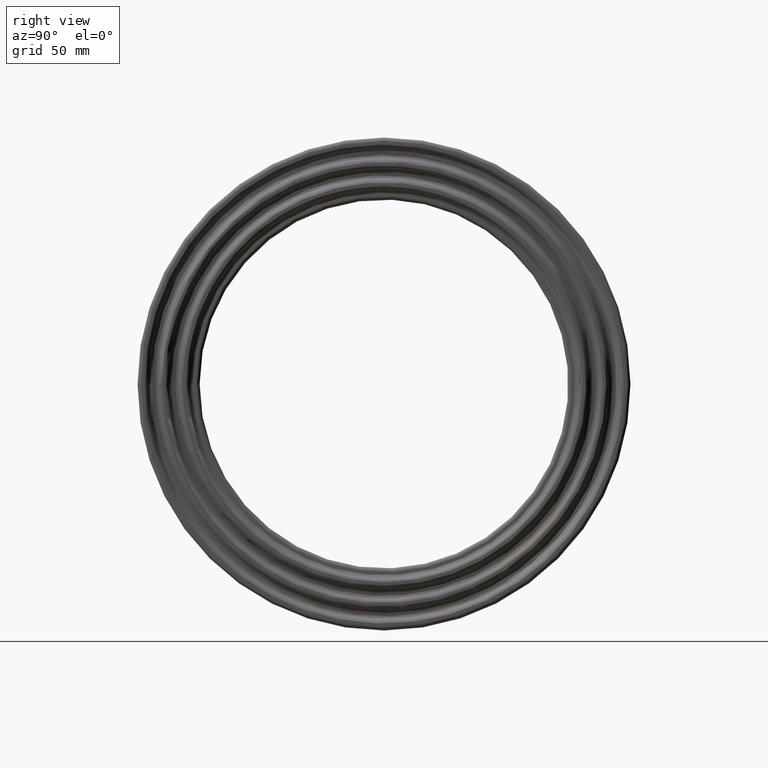
[diagram: clean part render]
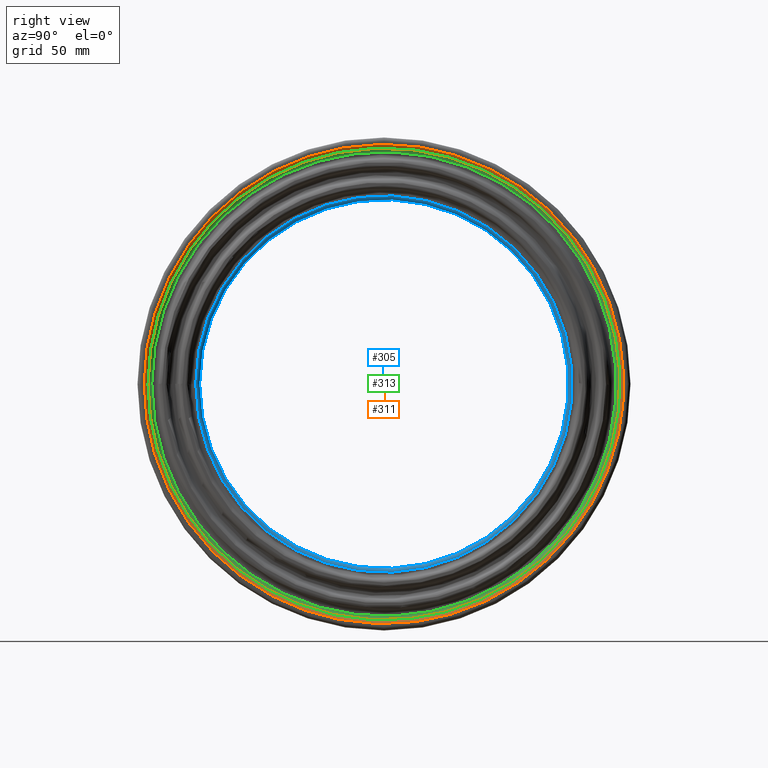
[diagram: same view with three faces highlighted in distinct colors, each labeled with its STEP entity id]
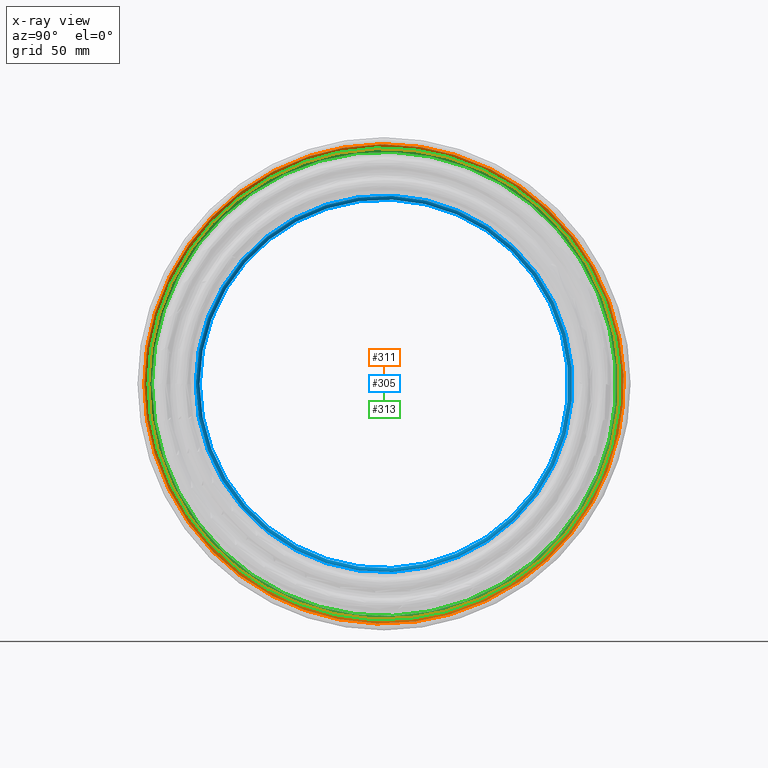
[diagram: x-ray of the same camera — body ghosted, the three highlighted faces saturated]
A machine part, right view with three faces highlighted in distinct colors.
The next image is the same camera in x-ray (body ghosted, the three faces saturated) — at least one of them is partly hidden behind the body in this view.
Their STEP definitions:

[orange] entity #311 — the highlighted face is a freeform B-spline surface patch.
#16=B_SPLINE_SURFACE_WITH_KNOTS('',3,3,((#897,#898,#899,#900,#901,#902,
#903,#904,#905,#906,#907,#908,#909,#910,#911,#912,#913,#914,#915,#916,#917,
#918,#919,#920,#921,#922,#923,#924,#925,#926,#927,#928,#929,#930,#931,#932,
#933,#934,#935,#936,#937,#938,#939,#940,#941,#942,#943,#944,#945,#946,#947),
(#948,#949,#950,#951,#952,#953,#954,#955,#956,#957,#958,#959,#960,#961,
#962,#963,#964,#965,#966,#967,#968,#969,#970,#971,#972,#973,#974,#975,#976,
#977,#978,#979,#980,#981,#982,#983,#984,#985,#986,#987,#988,#989,#990,#991,
#992,#993,#994,#995,#996,#997,#998),(#999,#1000,#1001,#1002,#1003,#1004,
#1005,#1006,#1007,#1008,#1009,#1010,#1011,#1012,#1013,#1014,#1015,#1016,
#1017,#1018,#1019,#1020,#1021,#1022,#1023,#1024,#1025,#1026,#1027,#1028,
#1029,#1030,#1031,#1032,#1033,#1034,#1035,#1036,#1037,#1038,#1039,#1040,
#1041,#1042,#1043,#1044,#1045,#1046,#1047,#1048,#1049),(#1050,#1051,#1052,
#1053,#1054,#1055,#1056,#1057,#1058,#1059,#1060,#1061,#1062,#1063,#1064,
#1065,#1066,#1067,#1068,#1069,#1070,#1071,#1072,#1073,#1074,#1075,#1076,
#1077,#1078,#1079,#1080,#1081,#1082,#1083,#1084,#1085,#1086,#1087,#1088,
#1089,#1090,#1091,#1092,#1093,#1094,#1095,#1096,#1097,#1098,#1099,#1100),
(#1101,#1102,#1103,#1104,#1105,#1106,#1107,#1108,#1109,#1110,#1111,#1112,
#1113,#1114,#1115,#1116,#1117,#1118,#1119,#1120,#1121,#1122,#1123,#1124,
#1125,#1126,#1127,#1128,#1129,#1130,#1131,#1132,#1133,#1134,#1135,#1136,
#1137,#1138,#1139,#1140,#1141,#1142,#1143,#1144,#1145,#1146,#1147,#1148,
#1149,#1150,#1151)),.UNSPECIFIED.,.F.,.T.,.F.,(4,1,4),(4,1,1,1,1,1,1,1,
1,1,1,1,1,1,1,1,1,1,1,1,1,1,1,1,1,1,1,1,1,1,1,1,1,1,1,1,1,1,1,1,1,1,1,1,
1,1,1,1,4),(0.,0.571428571428571,1.),(-38.5649514978928,-37.1876318015395,
-35.8103121051862,-34.4329924088329,-33.0556727124796,-30.301033319773,
-28.9237136234196,-27.5463939270663,-25.7099676652619,-23.8735414034575,
-22.0371151416531,-20.2006888798486,-18.3642626180442,-16.5278363562398,
-14.6914100944354,-12.854983832631,-11.0185575708265,-9.18213130902211,
-7.34570504721769,-5.50927878541327,-3.67285252360884,-1.83642626180442,
0.918213130902211,5.50927878541327,6.88659848176658,8.2639181781199,9.64123787447321,
9.98556779856154,11.0185575708265,13.7731969635332,15.1505166598865,15.4948465839748,
16.5278363562398,19.2824757489464,20.6597954452997,22.0371151416531,24.7917545343597,
25.136084458448,26.169074230713,27.5463939270663,28.9237136234196,29.268043547508,
30.301033319773,33.0556727124796,34.4329924088329,34.7773223329212,35.8103121051862,
37.1876318015395,38.5649514978928),.UNSPECIFIED.);
#27=B_SPLINE_CURVE_WITH_KNOTS('',3,(#1155,#1156,#1157,#1158,#1159,#1160,
#1161,#1162,#1163,#1164,#1165,#1166,#1167,#1168,#1169,#1170,#1171,#1172,
#1173,#1174,#1175,#1176,#1177,#1178,#1179,#1180,#1181,#1182,#1183,#1184,
#1185,#1186,#1187,#1188,#1189,#1190,#1191,#1192,#1193,#1194,#1195,#1196,
#1197,#1198,#1199,#1200,#1201,#1202,#1203,#1204,#1205),.UNSPECIFIED.,.T.,
 .F.,(4,1,1,1,1,1,1,1,1,1,1,1,1,1,1,1,1,1,1,1,1,1,1,1,1,1,1,1,1,1,1,1,1,
1,1,1,1,1,1,1,1,1,1,1,1,1,1,1,4),(-38.5649514978928,-37.1876318015395,-35.8103121051862,
-34.4329924088329,-33.0556727124796,-30.301033319773,-28.9237136234196,
-27.5463939270663,-25.7099676652619,-23.8735414034575,-22.0371151416531,
-20.2006888798486,-18.3642626180442,-16.5278363562398,-14.6914100944354,
-12.854983832631,-11.0185575708265,-9.18213130902211,-7.34570504721769,
-5.50927878541327,-3.67285252360884,-1.83642626180442,0.918213130902211,
5.50927878541327,6.88659848176658,8.2639181781199,9.64123787447321,9.98556779856154,
11.0185575708265,13.7731969635332,15.1505166598865,15.4948465839748,16.5278363562398,
19.2824757489464,20.6597954452997,22.0371151416531,24.7917545343597,25.136084458448,
26.169074230713,27.5463939270663,28.9237136234196,29.268043547508,30.301033319773,
33.0556727124796,34.4329924088329,34.7773223329212,35.8103121051862,37.1876318015395,
38.5649514978928),.UNSPECIFIED.);
#28=B_SPLINE_CURVE_WITH_KNOTS('',3,(#1206,#1207,#1208,#1209,#1210,#1211,
#1212,#1213,#1214,#1215,#1216,#1217,#1218,#1219,#1220,#1221,#1222,#1223,
#1224,#1225,#1226,#1227,#1228,#1229,#1230,#1231,#1232,#1233,#1234,#1235,
#1236,#1237,#1238,#1239,#1240,#1241,#1242,#1243,#1244,#1245,#1246,#1247,
#1248,#1249,#1250,#1251,#1252,#1253,#1254,#1255,#1256),.UNSPECIFIED.,.T.,
 .F.,(4,1,1,1,1,1,1,1,1,1,1,1,1,1,1,1,1,1,1,1,1,1,1,1,1,1,1,1,1,1,1,1,1,
1,1,1,1,1,1,1,1,1,1,1,1,1,1,1,4),(-38.5649514978928,-37.1876318015395,-35.8103121051862,
-34.7773223329212,-34.4329924088329,-33.0556727124796,-30.301033319773,
-29.268043547508,-28.9237136234196,-27.5463939270663,-26.169074230713,-25.136084458448,
-24.7917545343597,-22.0371151416531,-20.6597954452997,-19.2824757489464,
-16.5278363562398,-15.4948465839748,-15.1505166598865,-13.7731969635332,
-11.0185575708265,-9.98556779856154,-9.64123787447321,-8.2639181781199,
-6.88659848176658,-5.50927878541327,-0.918213130902211,1.83642626180442,
3.67285252360884,5.50927878541327,7.34570504721769,9.18213130902211,11.0185575708265,
12.854983832631,14.6914100944354,16.5278363562398,18.3642626180442,20.2006888798486,
22.0371151416531,23.8735414034575,25.7099676652619,27.5463939270663,28.9237136234196,
30.301033319773,33.0556727124796,34.4329924088329,35.8103121051862,37.1876318015395,
38.5649514978928),.UNSPECIFIED.);
#72=FACE_OUTER_BOUND('',#105,.T.);
#105=EDGE_LOOP('',(#243,#244,#245,#246));
#150=CIRCLE('',#345,1.99999999999999);
#175=VERTEX_POINT('',#1152);
#176=VERTEX_POINT('',#1153);
#204=EDGE_CURVE('',#175,#176,#150,.T.);
#205=EDGE_CURVE('',#176,#176,#27,.T.);
#206=EDGE_CURVE('',#175,#175,#28,.T.);
#243=ORIENTED_EDGE('',*,*,#204,.T.);
#244=ORIENTED_EDGE('',*,*,#205,.T.);
#245=ORIENTED_EDGE('',*,*,#204,.F.);
#246=ORIENTED_EDGE('',*,*,#206,.T.);
#311=ADVANCED_FACE('',(#72),#16,.F.);
#345=AXIS2_PLACEMENT_3D('',#1154,#403,#404);
#403=DIRECTION('center_axis',(0.,-0.000811828910621579,0.999999670466856));
#404=DIRECTION('ref_axis',(1.,0.,0.));
#897=CARTESIAN_POINT('Ctrl Pts',(112.575,-121.582419781438,-0.101484905849582));
#898=CARTESIAN_POINT('Ctrl Pts',(112.575,-121.586373218124,4.43250425035921));
#899=CARTESIAN_POINT('Ctrl Pts',(112.575,-121.08673959909,13.4785156126564));
#900=CARTESIAN_POINT('Ctrl Pts',(112.575,-118.813709832624,27.0079490751555));
#901=CARTESIAN_POINT('Ctrl Pts',(112.575,-115.011046361726,40.1947790299796));
#902=CARTESIAN_POINT('Ctrl Pts',(112.575,-108.107475640062,56.9226935141879));
#903=CARTESIAN_POINT('Ctrl Pts',(112.575,-98.3352524794707,72.5234182985012));
#904=CARTESIAN_POINT('Ctrl Pts',(112.575,-86.1901887409482,86.1069157391177));
#905=CARTESIAN_POINT('Ctrl Pts',(112.575,-74.9551190082364,96.175008401369));
#906=CARTESIAN_POINT('Ctrl Pts',(112.575,-61.0381991178804,105.68123669259));
#907=CARTESIAN_POINT('Ctrl Pts',(112.575,-44.6532417187592,113.565551579187));
#908=CARTESIAN_POINT('Ctrl Pts',(112.575,-27.2709560138244,118.956954736738));
#909=CARTESIAN_POINT('Ctrl Pts',(112.575,-9.10052093804184,121.696286820725));
#910=CARTESIAN_POINT('Ctrl Pts',(112.575,8.99688732194355,121.698652536706));
#911=CARTESIAN_POINT('Ctrl Pts',(112.575,27.130558405258,118.992021166358));
#912=CARTESIAN_POINT('Ctrl Pts',(112.575,44.5730446352432,113.596978928743));
#913=CARTESIAN_POINT('Ctrl Pts',(112.575,60.9207032279888,105.747231305039));
#914=CARTESIAN_POINT('Ctrl Pts',(112.575,76.1234602905462,95.3879853784871));
#915=CARTESIAN_POINT('Ctrl Pts',(112.575,89.4094987563369,83.0481791481288));
#916=CARTESIAN_POINT('Ctrl Pts',(112.575,100.816455635521,68.7839742062529));
#917=CARTESIAN_POINT('Ctrl Pts',(112.575,109.966457192214,52.9050259698005));
#918=CARTESIAN_POINT('Ctrl Pts',(112.575,116.591161354159,36.0536058943129));
#919=CARTESIAN_POINT('Ctrl Pts',(112.575,121.362653808886,15.1652716173865));
#920=CARTESIAN_POINT('Ctrl Pts',(112.575,122.484865279144,-15.203312625651));
#921=CARTESIAN_POINT('Ctrl Pts',(112.575,114.987185403277,-43.3881233460051));
#922=CARTESIAN_POINT('Ctrl Pts',(112.575,103.295256032114,-64.5995539841668));
#923=CARTESIAN_POINT('Ctrl Pts',(112.575,95.376718057471,-75.8253453390416));
#924=CARTESIAN_POINT('Ctrl Pts',(112.575,88.5403418343652,-83.4842770851366));
#925=CARTESIAN_POINT('Ctrl Pts',(112.575,82.0525087647791,-89.8110928708694));
#926=CARTESIAN_POINT('Ctrl Pts',(112.575,71.8202210288634,-98.7448776507187));
#927=CARTESIAN_POINT('Ctrl Pts',(112.575,57.1899414346354,-107.973409854648));
#928=CARTESIAN_POINT('Ctrl Pts',(112.575,43.557735637522,-113.629030220541));
#929=CARTESIAN_POINT('Ctrl Pts',(112.575,34.9802608905563,-116.512334422401));
#930=CARTESIAN_POINT('Ctrl Pts',(112.575,21.7999999184495,-120.145320292875));
#931=CARTESIAN_POINT('Ctrl Pts',(112.575,4.6493527824067,-122.08625669392));
#932=CARTESIAN_POINT('Ctrl Pts',(112.575,-13.4155438314247,-121.093818503816));
#933=CARTESIAN_POINT('Ctrl Pts',(112.575,-31.4687833932047,-118.066228940561));
#934=CARTESIAN_POINT('Ctrl Pts',(112.575,-45.528084858593,-113.150704178333));
#935=CARTESIAN_POINT('Ctrl Pts',(112.575,-57.6735470336422,-107.109993200666));
#936=CARTESIAN_POINT('Ctrl Pts',(112.575,-65.6050906893553,-102.599473067997));
#937=CARTESIAN_POINT('Ctrl Pts',(112.575,-75.8644816511653,-95.3376104344479));
#938=CARTESIAN_POINT('Ctrl Pts',(112.575,-83.5290488935234,-88.5006948495394));
#939=CARTESIAN_POINT('Ctrl Pts',(112.575,-89.8409702329119,-82.0185664587394));
#940=CARTESIAN_POINT('Ctrl Pts',(112.575,-98.7857873239331,-71.7685730845531));
#941=CARTESIAN_POINT('Ctrl Pts',(112.575,-108.003373283769,-57.1286886185787));
#942=CARTESIAN_POINT('Ctrl Pts',(112.575,-113.645034562713,-43.5152137309712));
#943=CARTESIAN_POINT('Ctrl Pts',(112.575,-116.530035081475,-34.925661901687));
#944=CARTESIAN_POINT('Ctrl Pts',(112.575,-118.944139227516,-26.1335436243746));
#945=CARTESIAN_POINT('Ctrl Pts',(112.575,-121.063018978969,-13.7254193245963));
#946=CARTESIAN_POINT('Ctrl Pts',(112.575,-121.578466344751,-4.63547406205837));
#947=CARTESIAN_POINT('Ctrl Pts',(112.575,-121.582419781438,-0.101484905849582));
#948=CARTESIAN_POINT('Ctrl Pts',(113.04173315136,-121.722519412581,-0.101593726226858));
#949=CARTESIAN_POINT('Ctrl Pts',(113.04173315136,-121.726477019722,4.43761647523856));
#950=CARTESIAN_POINT('Ctrl Pts',(113.04173315136,-121.226266873597,13.4940392526961));
#951=CARTESIAN_POINT('Ctrl Pts',(113.04173315136,-118.950620195327,27.0390723922311));
#952=CARTESIAN_POINT('Ctrl Pts',(113.04173315136,-115.143569984776,40.2410984395665));
#953=CARTESIAN_POINT('Ctrl Pts',(113.04173315136,-108.232060642034,56.9882649803769));
#954=CARTESIAN_POINT('Ctrl Pts',(113.04173315136,-98.4485486438257,72.6070067443205));
#955=CARTESIAN_POINT('Ctrl Pts',(113.04173315136,-86.2895096976213,86.2061323158895));
#956=CARTESIAN_POINT('Ctrl Pts',(113.04173315136,-75.0414883475216,96.2858299188288));
#957=CARTESIAN_POINT('Ctrl Pts',(113.04173315136,-61.1085432219771,105.803010813972));
#958=CARTESIAN_POINT('Ctrl Pts',(113.04173315136,-44.704675930073,113.696417385112));
#959=CARTESIAN_POINT('Ctrl Pts',(113.04173315136,-27.30239734906,119.094026316567));
#960=CARTESIAN_POINT('Ctrl Pts',(113.04173315136,-9.11099284286131,121.836517432402));
#961=CARTESIAN_POINT('Ctrl Pts',(113.04173315136,9.00723668818606,121.838886312412));
#962=CARTESIAN_POINT('Ctrl Pts',(113.04173315136,27.1618312565722,119.129134615233));
#963=CARTESIAN_POINT('Ctrl Pts',(113.04173315136,44.6244120055803,113.727873081466));
#964=CARTESIAN_POINT('Ctrl Pts',(113.04173315136,60.9908885554955,105.869090670146));
#965=CARTESIAN_POINT('Ctrl Pts',(113.04173315136,76.2111922827729,95.4978910840286));
#966=CARTESIAN_POINT('Ctrl Pts',(113.04173315136,89.5125086649255,83.1438878203132));
#967=CARTESIAN_POINT('Ctrl Pts',(113.04173315136,100.932635339554,68.8632279277604));
#968=CARTESIAN_POINT('Ctrl Pts',(113.04173315136,110.0931660024,52.9659898394486));
#969=CARTESIAN_POINT('Ctrl Pts',(113.04173315136,116.725512917098,36.0951521771324));
#970=CARTESIAN_POINT('Ctrl Pts',(113.04173315136,121.502494132032,15.1827467815228));
#971=CARTESIAN_POINT('Ctrl Pts',(113.04173315136,122.626011760511,-15.220825206291));
#972=CARTESIAN_POINT('Ctrl Pts',(113.04173315136,115.119677493369,-43.4381284611223));
#973=CARTESIAN_POINT('Ctrl Pts',(113.04173315136,103.414281427614,-64.6739953192441));
#974=CARTESIAN_POINT('Ctrl Pts',(113.04173315136,95.4866356723148,-75.9127014038716));
#975=CARTESIAN_POINT('Ctrl Pts',(113.04173315136,88.6423393360152,-83.5805027841948));
#976=CARTESIAN_POINT('Ctrl Pts',(113.04173315136,82.1470686975932,-89.9145729660139));
#977=CARTESIAN_POINT('Ctrl Pts',(113.04173315136,71.9029914920051,-98.8586495132831));
#978=CARTESIAN_POINT('Ctrl Pts',(113.04173315136,57.2558343893592,-108.097836380978));
#979=CARTESIAN_POINT('Ctrl Pts',(113.04173315136,43.6079082237608,-113.759970007358));
#980=CARTESIAN_POINT('Ctrl Pts',(113.04173315136,35.0205808769396,-116.646588422543));
#981=CARTESIAN_POINT('Ctrl Pts',(113.04173315136,21.8251430569849,-120.283757867505));
#982=CARTESIAN_POINT('Ctrl Pts',(113.04173315136,4.65468735134585,-122.226940971785));
#983=CARTESIAN_POINT('Ctrl Pts',(113.04173315136,-13.4310021700112,-121.233351137503));
#984=CARTESIAN_POINT('Ctrl Pts',(113.04173315136,-31.5050227999949,-118.202286835485));
#985=CARTESIAN_POINT('Ctrl Pts',(113.04173315136,-45.5805805913599,-113.281071542688));
#986=CARTESIAN_POINT('Ctrl Pts',(113.04173315136,-57.7399919171459,-107.233422995831));
#987=CARTESIAN_POINT('Ctrl Pts',(113.04173315136,-65.6806901694186,-102.717694041509));
#988=CARTESIAN_POINT('Ctrl Pts',(113.04173315136,-75.9518906412996,-95.4474786090818));
#989=CARTESIAN_POINT('Ctrl Pts',(113.04173315136,-83.6253174367911,-88.602654640245));
#990=CARTESIAN_POINT('Ctrl Pts',(113.04173315136,-89.9444835849357,-82.1130889104987));
#991=CARTESIAN_POINT('Ctrl Pts',(113.04173315136,-98.8996075308847,-71.8512812404058));
#992=CARTESIAN_POINT('Ctrl Pts',(113.04173315136,-108.127832826499,-57.1945154146093));
#993=CARTESIAN_POINT('Ctrl Pts',(113.04173315136,-113.775994049663,-43.5653332369555));
#994=CARTESIAN_POINT('Ctrl Pts',(113.04173315136,-116.664306237269,-34.965930011812));
#995=CARTESIAN_POINT('Ctrl Pts',(113.04173315136,-119.081194597941,-26.1636726727432));
#996=CARTESIAN_POINT('Ctrl Pts',(113.04173315136,-121.202521230751,-13.7412219560964));
#997=CARTESIAN_POINT('Ctrl Pts',(113.04173315136,-121.71856180544,-4.64080392769228));
#998=CARTESIAN_POINT('Ctrl Pts',(113.04173315136,-121.722519412581,-0.101593726226858));
#999=CARTESIAN_POINT('Ctrl Pts',(113.760676028759,-122.279069659246,-0.102068285706536));
#1000=CARTESIAN_POINT('Ctrl Pts',(113.760676028759,-122.283045837989,4.45790078769105));
#1001=CARTESIAN_POINT('Ctrl Pts',(113.760676028759,-121.780549575181,13.5557473622554));
#1002=CARTESIAN_POINT('Ctrl Pts',(113.760676028759,-119.494495138106,27.1627002939455));
#1003=CARTESIAN_POINT('Ctrl Pts',(113.760676028759,-115.670044092813,40.4250886928758));
#1004=CARTESIAN_POINT('Ctrl Pts',(113.760676028759,-108.726913095448,57.2488572032305));
#1005=CARTESIAN_POINT('Ctrl Pts',(113.760676028759,-98.8987030628556,72.9389625653287));
#1006=CARTESIAN_POINT('Ctrl Pts',(113.760676028759,-86.6840453013215,86.600297113422));
#1007=CARTESIAN_POINT('Ctrl Pts',(113.760676028759,-75.3846014861089,96.7260777032395));
#1008=CARTESIAN_POINT('Ctrl Pts',(113.760676028759,-61.3879370212419,106.286775657313));
#1009=CARTESIAN_POINT('Ctrl Pts',(113.760676028759,-44.9091030050036,114.216265013807));
#1010=CARTESIAN_POINT('Ctrl Pts',(113.760676028759,-27.4272107518889,119.638561707756));
#1011=CARTESIAN_POINT('Ctrl Pts',(113.760676028759,-9.15266902156541,122.393589193482));
#1012=CARTESIAN_POINT('Ctrl Pts',(113.760676028759,9.0484423245286,122.395968362961));
#1013=CARTESIAN_POINT('Ctrl Pts',(113.760676028759,27.2860102418231,119.673828723506));
#1014=CARTESIAN_POINT('Ctrl Pts',(113.760676028759,44.8284404656315,114.247874264488));
#1015=CARTESIAN_POINT('Ctrl Pts',(113.760676028759,61.2697733274733,106.35314627345));
#1016=CARTESIAN_POINT('Ctrl Pts',(113.760676028759,76.5596333950732,95.9345472233439));
#1017=CARTESIAN_POINT('Ctrl Pts',(113.760676028759,89.9218063015137,83.5240305250365));
#1018=CARTESIAN_POINT('Ctrl Pts',(113.760676028759,101.394117481424,69.1780979744875));
#1019=CARTESIAN_POINT('Ctrl Pts',(113.760676028759,110.596550595611,53.208163896722));
#1020=CARTESIAN_POINT('Ctrl Pts',(113.760676028759,117.259211252975,36.2601875166889));
#1021=CARTESIAN_POINT('Ctrl Pts',(113.760676028759,122.058045869002,15.25216640954));
#1022=CARTESIAN_POINT('Ctrl Pts',(113.760676028759,123.186684424145,-15.2904268778072));
#1023=CARTESIAN_POINT('Ctrl Pts',(113.760676028759,115.646047352191,-43.6367290196245));
#1024=CARTESIAN_POINT('Ctrl Pts',(113.760676028759,103.887123519382,-64.9696994567144));
#1025=CARTESIAN_POINT('Ctrl Pts',(113.760676028759,95.92320956151,-76.2598178136941));
#1026=CARTESIAN_POINT('Ctrl Pts',(113.760676028759,89.0476717603319,-83.9626238711721));
#1027=CARTESIAN_POINT('Ctrl Pts',(113.760676028759,82.5226554240903,-90.3256997677035));
#1028=CARTESIAN_POINT('Ctrl Pts',(113.760676028759,72.231737861068,-99.3106744716773));
#1029=CARTESIAN_POINT('Ctrl Pts',(113.760676028759,57.5176332721211,-108.592080059157));
#1030=CARTESIAN_POINT('Ctrl Pts',(113.760676028759,43.8073196614223,-114.280107184943));
#1031=CARTESIAN_POINT('Ctrl Pts',(113.760676028759,35.1806899563618,-117.179934217131));
#1032=CARTESIAN_POINT('Ctrl Pts',(113.760676028759,21.9249054682117,-120.833737209057));
#1033=CARTESIAN_POINT('Ctrl Pts',(113.760676028759,4.67599822415464,-122.785792538965));
#1034=CARTESIAN_POINT('Ctrl Pts',(113.760676028759,-13.4924130755331,-121.787669690749));
#1035=CARTESIAN_POINT('Ctrl Pts',(113.760676028759,-31.6491001599673,-118.74272923091));
#1036=CARTESIAN_POINT('Ctrl Pts',(113.760676028759,-45.7889464612671,-113.799045336882));
#1037=CARTESIAN_POINT('Ctrl Pts',(113.760676028759,-58.0040110999869,-107.723716572637));
#1038=CARTESIAN_POINT('Ctrl Pts',(113.760676028759,-65.980997868053,-103.187354438444));
#1039=CARTESIAN_POINT('Ctrl Pts',(113.760676028759,-76.2991765533294,-95.8838788737129));
#1040=CARTESIAN_POINT('Ctrl Pts',(113.760676028759,-84.0076542467501,-89.0077957521163));
#1041=CARTESIAN_POINT('Ctrl Pts',(113.760676028759,-90.355748594659,-82.4885182547977));
#1042=CARTESIAN_POINT('Ctrl Pts',(113.760676028759,-99.3518182718474,-72.1797946300893));
#1043=CARTESIAN_POINT('Ctrl Pts',(113.760676028759,-108.622215525219,-57.4560284590526));
#1044=CARTESIAN_POINT('Ctrl Pts',(113.760676028759,-114.296202937498,-43.7645550584115));
#1045=CARTESIAN_POINT('Ctrl Pts',(113.760676028759,-117.197737051054,-35.1257755597443));
#1046=CARTESIAN_POINT('Ctrl Pts',(113.760676028759,-119.625673102384,-26.2832815340293));
#1047=CARTESIAN_POINT('Ctrl Pts',(113.760676028759,-121.756692502724,-13.8040670781301));
#1048=CARTESIAN_POINT('Ctrl Pts',(113.760676028759,-122.275093480503,-4.66203735910412));
#1049=CARTESIAN_POINT('Ctrl Pts',(113.760676028759,-122.279069659246,-0.102068285706536));
#1050=CARTESIAN_POINT('Ctrl Pts',(114.,-123.13250349758,-0.102779975466052));
#1051=CARTESIAN_POINT('Ctrl Pts',(114.,-123.136507395156,4.48901462654898));
#1052=CARTESIAN_POINT('Ctrl Pts',(114.,-122.630503945459,13.6503576201671));
#1053=CARTESIAN_POINT('Ctrl Pts',(114.,-120.328494427524,27.3522796584209));
#1054=CARTESIAN_POINT('Ctrl Pts',(114.,-116.477350615139,40.7072315696876));
#1055=CARTESIAN_POINT('Ctrl Pts',(114.,-109.485762150433,57.6484178071801));
#1056=CARTESIAN_POINT('Ctrl Pts',(114.,-99.5889547787462,73.4480339950852));
#1057=CARTESIAN_POINT('Ctrl Pts',(114.,-87.2890477556725,87.2047143455052));
#1058=CARTESIAN_POINT('Ctrl Pts',(114.,-75.9107402091979,97.401167042261));
#1059=CARTESIAN_POINT('Ctrl Pts',(114.,-61.8163884540194,107.028592755457));
#1060=CARTESIAN_POINT('Ctrl Pts',(114.,-45.2225396713547,115.013425699186));
#1061=CARTESIAN_POINT('Ctrl Pts',(114.,-27.6186375006791,120.473566170279));
#1062=CARTESIAN_POINT('Ctrl Pts',(114.,-9.21654787223062,123.247822289509));
#1063=CARTESIAN_POINT('Ctrl Pts',(114.,9.11159347267174,123.250218101099));
#1064=CARTESIAN_POINT('Ctrl Pts',(114.,27.4764509310952,120.50907945176));
#1065=CARTESIAN_POINT('Ctrl Pts',(114.,45.1413163133421,115.045254899657));
#1066=CARTESIAN_POINT('Ctrl Pts',(114.,61.6973980764865,107.095427374208));
#1067=CARTESIAN_POINT('Ctrl Pts',(114.,77.0939745101646,96.6041114062739));
#1068=CARTESIAN_POINT('Ctrl Pts',(114.,90.5494046232485,84.1069786870249));
#1069=CARTESIAN_POINT('Ctrl Pts',(114.,102.101787740516,69.6609186747299));
#1070=CARTESIAN_POINT('Ctrl Pts',(114.,111.368447044175,53.5795247621604));
#1071=CARTESIAN_POINT('Ctrl Pts',(114.,118.077609804371,36.5132618009933));
#1072=CARTESIAN_POINT('Ctrl Pts',(114.,122.909936583006,15.3586173089109));
#1073=CARTESIAN_POINT('Ctrl Pts',(114.,124.046453450955,-15.3971442706513));
#1074=CARTESIAN_POINT('Ctrl Pts',(114.,116.453186051177,-43.9412877074684));
#1075=CARTESIAN_POINT('Ctrl Pts',(114.,104.612192553444,-65.4231488713437));
#1076=CARTESIAN_POINT('Ctrl Pts',(114.,96.5926967142919,-76.7920636637134));
#1077=CARTESIAN_POINT('Ctrl Pts',(114.,89.6691682349991,-84.5486343731048));
#1078=CARTESIAN_POINT('Ctrl Pts',(114.,83.0986144740854,-90.9561176478663));
#1079=CARTESIAN_POINT('Ctrl Pts',(114.,72.7358726423028,-100.003801809433));
#1080=CARTESIAN_POINT('Ctrl Pts',(114.,57.9190709122733,-109.349987724519));
#1081=CARTESIAN_POINT('Ctrl Pts',(114.,44.1130666088675,-115.077713520389));
#1082=CARTESIAN_POINT('Ctrl Pts',(114.,35.4262308890827,-117.997778895083));
#1083=CARTESIAN_POINT('Ctrl Pts',(114.,22.0779299647766,-121.677082989115));
#1084=CARTESIAN_POINT('Ctrl Pts',(114.,4.70863192859535,-123.642763339782));
#1085=CARTESIAN_POINT('Ctrl Pts',(114.,-13.5865819110047,-122.637673519102));
#1086=CARTESIAN_POINT('Ctrl Pts',(114.,-31.8699898418208,-119.571482396703));
#1087=CARTESIAN_POINT('Ctrl Pts',(114.,-46.1085284098713,-114.593292359731));
#1088=CARTESIAN_POINT('Ctrl Pts',(114.,-58.4088429130772,-108.475563433775));
#1089=CARTESIAN_POINT('Ctrl Pts',(114.,-66.4415054877483,-103.907539282951));
#1090=CARTESIAN_POINT('Ctrl Pts',(114.,-76.8316977638947,-96.5530911529363));
#1091=CARTESIAN_POINT('Ctrl Pts',(114.,-84.5939782956083,-89.6290145890903));
#1092=CARTESIAN_POINT('Ctrl Pts',(114.,-90.9863760986628,-83.0642391855915));
#1093=CARTESIAN_POINT('Ctrl Pts',(114.,-100.045232869981,-72.6835666434037));
#1094=CARTESIAN_POINT('Ctrl Pts',(114.,-109.380333390458,-57.8570365080381));
#1095=CARTESIAN_POINT('Ctrl Pts',(114.,-115.093921717692,-44.0700031904711));
#1096=CARTESIAN_POINT('Ctrl Pts',(114.,-118.015705708616,-35.3709341543912));
#1097=CARTESIAN_POINT('Ctrl Pts',(114.,-120.460587488599,-26.4667242110545));
#1098=CARTESIAN_POINT('Ctrl Pts',(114.,-122.606480560001,-13.9004099919231));
#1099=CARTESIAN_POINT('Ctrl Pts',(114.,-123.128499600003,-4.69457457748109));
#1100=CARTESIAN_POINT('Ctrl Pts',(114.,-123.13250349758,-0.102779975466052));
#1101=CARTESIAN_POINT('Ctrl Pts',(114.,-123.497984079368,-0.103083828315299));
#1102=CARTESIAN_POINT('Ctrl Pts',(114.,-123.501999803531,4.50233956789668));
#1103=CARTESIAN_POINT('Ctrl Pts',(114.,-122.994494320091,13.6908733148893));
#1104=CARTESIAN_POINT('Ctrl Pts',(114.,-120.685652347579,27.4334667042806));
#1105=CARTESIAN_POINT('Ctrl Pts',(114.,-116.823076872997,40.8280587739708));
#1106=CARTESIAN_POINT('Ctrl Pts',(114.,-109.810738505267,57.819526128918));
#1107=CARTESIAN_POINT('Ctrl Pts',(114.,-99.8845512943509,73.6660446017627));
#1108=CARTESIAN_POINT('Ctrl Pts',(114.,-87.5481387528067,87.4635537620427));
#1109=CARTESIAN_POINT('Ctrl Pts',(114.,-76.1360574216798,97.69027197959));
#1110=CARTESIAN_POINT('Ctrl Pts',(114.,-61.9998726497143,107.346273499172));
#1111=CARTESIAN_POINT('Ctrl Pts',(114.,-45.3567657625895,115.354807924561));
#1112=CARTESIAN_POINT('Ctrl Pts',(114.,-27.7006173892469,120.83115411436));
#1113=CARTESIAN_POINT('Ctrl Pts',(114.,-9.24390213602115,123.613645125022));
#1114=CARTESIAN_POINT('Ctrl Pts',(114.,9.1386357439391,123.616048113505));
#1115=CARTESIAN_POINT('Ctrl Pts',(114.,27.5580077779341,120.866773025176));
#1116=CARTESIAN_POINT('Ctrl Pts',(114.,45.2753051520745,115.38673042061));
#1117=CARTESIAN_POINT('Ctrl Pts',(114.,61.8805255799218,107.413307874802));
#1118=CARTESIAN_POINT('Ctrl Pts',(114.,77.3228062406401,96.8908491935925));
#1119=CARTESIAN_POINT('Ctrl Pts',(114.,90.818169878538,84.3566259389581));
#1120=CARTESIAN_POINT('Ctrl Pts',(114.,102.404846485172,69.8676845444423));
#1121=CARTESIAN_POINT('Ctrl Pts',(114.,111.699008820533,53.7385591328269));
#1122=CARTESIAN_POINT('Ctrl Pts',(114.,118.428087009576,36.6216403222091));
#1123=CARTESIAN_POINT('Ctrl Pts',(114.,123.274755633774,15.4042046220997));
#1124=CARTESIAN_POINT('Ctrl Pts',(114.,124.414647852869,-15.4428449768602));
#1125=CARTESIAN_POINT('Ctrl Pts',(114.,116.798839978618,-44.0717151036392));
#1126=CARTESIAN_POINT('Ctrl Pts',(114.,104.922701060403,-65.6173376365791));
#1127=CARTESIAN_POINT('Ctrl Pts',(114.,96.8794043528504,-77.0199944064873));
#1128=CARTESIAN_POINT('Ctrl Pts',(114.,89.9353191513928,-84.7995947183131));
#1129=CARTESIAN_POINT('Ctrl Pts',(114.,83.3452684962268,-91.2260912182521));
#1130=CARTESIAN_POINT('Ctrl Pts',(114.,72.951768266693,-100.300630222276));
#1131=CARTESIAN_POINT('Ctrl Pts',(114.,58.0909846134917,-109.674560476713));
#1132=CARTESIAN_POINT('Ctrl Pts',(114.,44.2439996832278,-115.419286689282));
#1133=CARTESIAN_POINT('Ctrl Pts',(114.,35.5313844741688,-118.348018137935));
#1134=CARTESIAN_POINT('Ctrl Pts',(114.,22.1434648833163,-122.038242695062));
#1135=CARTESIAN_POINT('Ctrl Pts',(114.,4.72260460791298,-124.009759080294));
#1136=CARTESIAN_POINT('Ctrl Pts',(114.,-13.6269093960103,-123.001684754899));
#1137=CARTESIAN_POINT('Ctrl Pts',(114.,-31.9645826878369,-119.926394689493));
#1138=CARTESIAN_POINT('Ctrl Pts',(114.,-46.2453922955155,-114.933424489372));
#1139=CARTESIAN_POINT('Ctrl Pts',(114.,-58.5822095510623,-108.797540457051));
#1140=CARTESIAN_POINT('Ctrl Pts',(114.,-66.6387168477497,-104.215955845267));
#1141=CARTESIAN_POINT('Ctrl Pts',(114.,-77.0597473219192,-96.8396805785238));
#1142=CARTESIAN_POINT('Ctrl Pts',(114.,-84.8450719187941,-89.8950475174706));
#1143=CARTESIAN_POINT('Ctrl Pts',(114.,-91.2564393063103,-83.3107914198662));
#1144=CARTESIAN_POINT('Ctrl Pts',(114.,-100.342184438588,-72.8993065948853));
#1145=CARTESIAN_POINT('Ctrl Pts',(114.,-109.70499598786,-58.0287667425546));
#1146=CARTESIAN_POINT('Ctrl Pts',(114.,-115.435543184244,-44.200807832402));
#1147=CARTESIAN_POINT('Ctrl Pts',(114.,-118.365997675737,-35.4759252632874));
#1148=CARTESIAN_POINT('Ctrl Pts',(114.,-120.818136693283,-26.5452847563182));
#1149=CARTESIAN_POINT('Ctrl Pts',(114.,-122.970399975108,-13.9416670623826));
#1150=CARTESIAN_POINT('Ctrl Pts',(114.,-123.493968355204,-4.70850722452728));
#1151=CARTESIAN_POINT('Ctrl Pts',(114.,-123.497984079368,-0.103083828315299));
#1152=CARTESIAN_POINT('',(114.,-123.49774852095,-0.100259075684883));
#1153=CARTESIAN_POINT('',(112.575,-121.582187876742,-0.0987039676614066));
#1154=CARTESIAN_POINT('Origin',(112.,-123.49774852095,-0.100259075684883));
#1155=CARTESIAN_POINT('Ctrl Pts',(112.575,-121.582419781438,-0.101484905849582));
#1156=CARTESIAN_POINT('Ctrl Pts',(112.575,-121.586373218124,4.43250425035921));
#1157=CARTESIAN_POINT('Ctrl Pts',(112.575,-121.08673959909,13.4785156126564));
#1158=CARTESIAN_POINT('Ctrl Pts',(112.575,-118.813709832624,27.0079490751555));
#1159=CARTESIAN_POINT('Ctrl Pts',(112.575,-115.011046361726,40.1947790299796));
#1160=CARTESIAN_POINT('Ctrl Pts',(112.575,-108.107475640062,56.9226935141879));
#1161=CARTESIAN_POINT('Ctrl Pts',(112.575,-98.3352524794707,72.5234182985012));
#1162=CARTESIAN_POINT('Ctrl Pts',(112.575,-86.1901887409482,86.1069157391177));
#1163=CARTESIAN_POINT('Ctrl Pts',(112.575,-74.9551190082364,96.175008401369));
#1164=CARTESIAN_POINT('Ctrl Pts',(112.575,-61.0381991178804,105.68123669259));
#1165=CARTESIAN_POINT('Ctrl Pts',(112.575,-44.6532417187592,113.565551579187));
#1166=CARTESIAN_POINT('Ctrl Pts',(112.575,-27.2709560138244,118.956954736738));
#1167=CARTESIAN_POINT('Ctrl Pts',(112.575,-9.10052093804184,121.696286820725));
#1168=CARTESIAN_POINT('Ctrl Pts',(112.575,8.99688732194355,121.698652536706));
#1169=CARTESIAN_POINT('Ctrl Pts',(112.575,27.130558405258,118.992021166358));
#1170=CARTESIAN_POINT('Ctrl Pts',(112.575,44.5730446352432,113.596978928743));
#1171=CARTESIAN_POINT('Ctrl Pts',(112.575,60.9207032279888,105.747231305039));
#1172=CARTESIAN_POINT('Ctrl Pts',(112.575,76.1234602905462,95.3879853784871));
#1173=CARTESIAN_POINT('Ctrl Pts',(112.575,89.4094987563369,83.0481791481288));
#1174=CARTESIAN_POINT('Ctrl Pts',(112.575,100.816455635521,68.7839742062529));
#1175=CARTESIAN_POINT('Ctrl Pts',(112.575,109.966457192214,52.9050259698005));
#1176=CARTESIAN_POINT('Ctrl Pts',(112.575,116.591161354159,36.0536058943129));
#1177=CARTESIAN_POINT('Ctrl Pts',(112.575,121.362653808886,15.1652716173865));
#1178=CARTESIAN_POINT('Ctrl Pts',(112.575,122.484865279144,-15.203312625651));
#1179=CARTESIAN_POINT('Ctrl Pts',(112.575,114.987185403277,-43.3881233460051));
#1180=CARTESIAN_POINT('Ctrl Pts',(112.575,103.295256032114,-64.5995539841668));
#1181=CARTESIAN_POINT('Ctrl Pts',(112.575,95.376718057471,-75.8253453390416));
#1182=CARTESIAN_POINT('Ctrl Pts',(112.575,88.5403418343652,-83.4842770851366));
#1183=CARTESIAN_POINT('Ctrl Pts',(112.575,82.0525087647791,-89.8110928708694));
#1184=CARTESIAN_POINT('Ctrl Pts',(112.575,71.8202210288634,-98.7448776507187));
#1185=CARTESIAN_POINT('Ctrl Pts',(112.575,57.1899414346354,-107.973409854648));
#1186=CARTESIAN_POINT('Ctrl Pts',(112.575,43.557735637522,-113.629030220541));
#1187=CARTESIAN_POINT('Ctrl Pts',(112.575,34.9802608905563,-116.512334422401));
#1188=CARTESIAN_POINT('Ctrl Pts',(112.575,21.7999999184495,-120.145320292875));
#1189=CARTESIAN_POINT('Ctrl Pts',(112.575,4.6493527824067,-122.08625669392));
#1190=CARTESIAN_POINT('Ctrl Pts',(112.575,-13.4155438314247,-121.093818503816));
#1191=CARTESIAN_POINT('Ctrl Pts',(112.575,-31.4687833932047,-118.066228940561));
#1192=CARTESIAN_POINT('Ctrl Pts',(112.575,-45.528084858593,-113.150704178333));
#1193=CARTESIAN_POINT('Ctrl Pts',(112.575,-57.6735470336422,-107.109993200666));
#1194=CARTESIAN_POINT('Ctrl Pts',(112.575,-65.6050906893553,-102.599473067997));
#1195=CARTESIAN_POINT('Ctrl Pts',(112.575,-75.8644816511653,-95.3376104344479));
#1196=CARTESIAN_POINT('Ctrl Pts',(112.575,-83.5290488935234,-88.5006948495394));
#1197=CARTESIAN_POINT('Ctrl Pts',(112.575,-89.8409702329119,-82.0185664587394));
#1198=CARTESIAN_POINT('Ctrl Pts',(112.575,-98.7857873239331,-71.7685730845531));
#1199=CARTESIAN_POINT('Ctrl Pts',(112.575,-108.003373283769,-57.1286886185787));
#1200=CARTESIAN_POINT('Ctrl Pts',(112.575,-113.645034562713,-43.5152137309712));
#1201=CARTESIAN_POINT('Ctrl Pts',(112.575,-116.530035081475,-34.925661901687));
#1202=CARTESIAN_POINT('Ctrl Pts',(112.575,-118.944139227516,-26.1335436243746));
#1203=CARTESIAN_POINT('Ctrl Pts',(112.575,-121.063018978969,-13.7254193245963));
#1204=CARTESIAN_POINT('Ctrl Pts',(112.575,-121.578466344751,-4.63547406205837));
#1205=CARTESIAN_POINT('Ctrl Pts',(112.575,-121.582419781438,-0.101484905849582));
#1206=CARTESIAN_POINT('Ctrl Pts',(114.,-123.497984079368,-0.103083828315299));
#1207=CARTESIAN_POINT('Ctrl Pts',(114.,-123.493968355204,-4.70850722452728));
#1208=CARTESIAN_POINT('Ctrl Pts',(114.,-122.970399975108,-13.9416670623826));
#1209=CARTESIAN_POINT('Ctrl Pts',(114.,-120.818136693283,-26.5452847563182));
#1210=CARTESIAN_POINT('Ctrl Pts',(114.,-118.365997675737,-35.4759252632874));
#1211=CARTESIAN_POINT('Ctrl Pts',(114.,-115.435543184244,-44.200807832402));
#1212=CARTESIAN_POINT('Ctrl Pts',(114.,-109.70499598786,-58.0287667425546));
#1213=CARTESIAN_POINT('Ctrl Pts',(114.,-100.342184438588,-72.8993065948853));
#1214=CARTESIAN_POINT('Ctrl Pts',(114.,-91.2564393063103,-83.3107914198662));
#1215=CARTESIAN_POINT('Ctrl Pts',(114.,-84.8450719187941,-89.8950475174706));
#1216=CARTESIAN_POINT('Ctrl Pts',(114.,-77.0597473219192,-96.8396805785238));
#1217=CARTESIAN_POINT('Ctrl Pts',(114.,-66.6387168477497,-104.215955845267));
#1218=CARTESIAN_POINT('Ctrl Pts',(114.,-58.5822095510623,-108.797540457051));
#1219=CARTESIAN_POINT('Ctrl Pts',(114.,-46.2453922955155,-114.933424489372));
#1220=CARTESIAN_POINT('Ctrl Pts',(114.,-31.9645826878369,-119.926394689493));
#1221=CARTESIAN_POINT('Ctrl Pts',(114.,-13.6269093960103,-123.001684754899));
#1222=CARTESIAN_POINT('Ctrl Pts',(114.,4.72260460791298,-124.009759080294));
#1223=CARTESIAN_POINT('Ctrl Pts',(114.,22.1434648833163,-122.038242695062));
#1224=CARTESIAN_POINT('Ctrl Pts',(114.,35.5313844741688,-118.348018137935));
#1225=CARTESIAN_POINT('Ctrl Pts',(114.,44.2439996832278,-115.419286689282));
#1226=CARTESIAN_POINT('Ctrl Pts',(114.,58.0909846134917,-109.674560476713));
#1227=CARTESIAN_POINT('Ctrl Pts',(114.,72.951768266693,-100.300630222276));
#1228=CARTESIAN_POINT('Ctrl Pts',(114.,83.3452684962268,-91.2260912182521));
#1229=CARTESIAN_POINT('Ctrl Pts',(114.,89.9353191513928,-84.7995947183131));
#1230=CARTESIAN_POINT('Ctrl Pts',(114.,96.8794043528504,-77.0199944064873));
#1231=CARTESIAN_POINT('Ctrl Pts',(114.,104.922701060403,-65.6173376365791));
#1232=CARTESIAN_POINT('Ctrl Pts',(114.,116.798839978618,-44.0717151036392));
#1233=CARTESIAN_POINT('Ctrl Pts',(114.,124.414647852869,-15.4428449768602));
#1234=CARTESIAN_POINT('Ctrl Pts',(114.,123.274755633774,15.4042046220997));
#1235=CARTESIAN_POINT('Ctrl Pts',(114.,118.428087009576,36.6216403222091));
#1236=CARTESIAN_POINT('Ctrl Pts',(114.,111.699008820533,53.7385591328269));
#1237=CARTESIAN_POINT('Ctrl Pts',(114.,102.404846485172,69.8676845444423));
#1238=CARTESIAN_POINT('Ctrl Pts',(114.,90.818169878538,84.3566259389581));
#1239=CARTESIAN_POINT('Ctrl Pts',(114.,77.3228062406401,96.8908491935925));
#1240=CARTESIAN_POINT('Ctrl Pts',(114.,61.8805255799218,107.413307874802));
#1241=CARTESIAN_POINT('Ctrl Pts',(114.,45.2753051520745,115.38673042061));
#1242=CARTESIAN_POINT('Ctrl Pts',(114.,27.5580077779341,120.866773025176));
#1243=CARTESIAN_POINT('Ctrl Pts',(114.,9.1386357439391,123.616048113505));
#1244=CARTESIAN_POINT('Ctrl Pts',(114.,-9.24390213602115,123.613645125022));
#1245=CARTESIAN_POINT('Ctrl Pts',(114.,-27.7006173892469,120.83115411436));
#1246=CARTESIAN_POINT('Ctrl Pts',(114.,-45.3567657625895,115.354807924561));
#1247=CARTESIAN_POINT('Ctrl Pts',(114.,-61.9998726497143,107.346273499172));
#1248=CARTESIAN_POINT('Ctrl Pts',(114.,-76.1360574216798,97.69027197959));
#1249=CARTESIAN_POINT('Ctrl Pts',(114.,-87.5481387528067,87.4635537620427));
#1250=CARTESIAN_POINT('Ctrl Pts',(114.,-99.8845512943509,73.6660446017627));
#1251=CARTESIAN_POINT('Ctrl Pts',(114.,-109.810738505267,57.819526128918));
#1252=CARTESIAN_POINT('Ctrl Pts',(114.,-116.823076872997,40.8280587739708));
#1253=CARTESIAN_POINT('Ctrl Pts',(114.,-120.685652347579,27.4334667042806));
#1254=CARTESIAN_POINT('Ctrl Pts',(114.,-122.994494320091,13.6908733148893));
#1255=CARTESIAN_POINT('Ctrl Pts',(114.,-123.501999803531,4.50233956789668));
#1256=CARTESIAN_POINT('Ctrl Pts',(114.,-123.497984079368,-0.103083828315299));

[blue] entity #305 — the highlighted toroidal blend (fillet) surface has major radius 97 mm and minor (blend) radius 2 mm.
#43=FACE_BOUND('',#95,.T.);
#66=FACE_OUTER_BOUND('',#94,.T.);
#94=EDGE_LOOP('',(#229));
#95=EDGE_LOOP('',(#230));
#145=CIRCLE('',#336,95.);
#146=CIRCLE('',#337,97.);
#168=VERTEX_POINT('',#477);
#169=VERTEX_POINT('',#479);
#196=EDGE_CURVE('',#168,#168,#145,.T.);
#197=EDGE_CURVE('',#169,#169,#146,.T.);
#229=ORIENTED_EDGE('',*,*,#196,.T.);
#230=ORIENTED_EDGE('',*,*,#197,.T.);
#295=TOROIDAL_SURFACE('',#335,97.,2.);
#305=ADVANCED_FACE('',(#66,#43),#295,.T.);
#335=AXIS2_PLACEMENT_3D('',#476,#383,#384);
#336=AXIS2_PLACEMENT_3D('',#478,#385,#386);
#337=AXIS2_PLACEMENT_3D('',#480,#387,#388);
#383=DIRECTION('center_axis',(-1.,0.,0.));
#384=DIRECTION('ref_axis',(0.,0.,1.));
#385=DIRECTION('center_axis',(-1.,0.,0.));
#386=DIRECTION('ref_axis',(0.,1.,6.12323399573677E-17));
#387=DIRECTION('center_axis',(1.,0.,0.));
#388=DIRECTION('ref_axis',(0.,1.,6.12323399573677E-17));
#476=CARTESIAN_POINT('Origin',(109.15,0.,0.));
#477=CARTESIAN_POINT('',(109.15,-95.,5.81707229594993E-15));
#478=CARTESIAN_POINT('Origin',(109.15,0.,0.));
#479=CARTESIAN_POINT('',(111.15,-97.,-1.7818610927594E-14));
#480=CARTESIAN_POINT('Origin',(111.15,0.,0.));

[green] entity #313 — the highlighted toroidal blend (fillet) surface has major radius 119.667 mm and minor (blend) radius 2 mm.
#27=B_SPLINE_CURVE_WITH_KNOTS('',3,(#1155,#1156,#1157,#1158,#1159,#1160,
#1161,#1162,#1163,#1164,#1165,#1166,#1167,#1168,#1169,#1170,#1171,#1172,
#1173,#1174,#1175,#1176,#1177,#1178,#1179,#1180,#1181,#1182,#1183,#1184,
#1185,#1186,#1187,#1188,#1189,#1190,#1191,#1192,#1193,#1194,#1195,#1196,
#1197,#1198,#1199,#1200,#1201,#1202,#1203,#1204,#1205),.UNSPECIFIED.,.T.,
 .F.,(4,1,1,1,1,1,1,1,1,1,1,1,1,1,1,1,1,1,1,1,1,1,1,1,1,1,1,1,1,1,1,1,1,
1,1,1,1,1,1,1,1,1,1,1,1,1,1,1,4),(-38.5649514978928,-37.1876318015395,-35.8103121051862,
-34.4329924088329,-33.0556727124796,-30.301033319773,-28.9237136234196,
-27.5463939270663,-25.7099676652619,-23.8735414034575,-22.0371151416531,
-20.2006888798486,-18.3642626180442,-16.5278363562398,-14.6914100944354,
-12.854983832631,-11.0185575708265,-9.18213130902211,-7.34570504721769,
-5.50927878541327,-3.67285252360884,-1.83642626180442,0.918213130902211,
5.50927878541327,6.88659848176658,8.2639181781199,9.64123787447321,9.98556779856154,
11.0185575708265,13.7731969635332,15.1505166598865,15.4948465839748,16.5278363562398,
19.2824757489464,20.6597954452997,22.0371151416531,24.7917545343597,25.136084458448,
26.169074230713,27.5463939270663,28.9237136234196,29.268043547508,30.301033319773,
33.0556727124796,34.4329924088329,34.7773223329212,35.8103121051862,37.1876318015395,
38.5649514978928),.UNSPECIFIED.);
#49=FACE_BOUND('',#109,.T.);
#74=FACE_OUTER_BOUND('',#108,.T.);
#108=EDGE_LOOP('',(#249));
#109=EDGE_LOOP('',(#250));
#152=CIRCLE('',#349,119.666666666667);
#176=VERTEX_POINT('',#1153);
#178=VERTEX_POINT('',#1261);
#205=EDGE_CURVE('',#176,#176,#27,.T.);
#208=EDGE_CURVE('',#178,#178,#152,.T.);
#249=ORIENTED_EDGE('',*,*,#205,.F.);
#250=ORIENTED_EDGE('',*,*,#208,.T.);
#297=TOROIDAL_SURFACE('',#348,119.666666666667,2.);
#313=ADVANCED_FACE('',(#74,#49),#297,.F.);
#348=AXIS2_PLACEMENT_3D('',#1260,#409,#410);
#349=AXIS2_PLACEMENT_3D('',#1262,#411,#412);
#409=DIRECTION('center_axis',(-1.,0.,0.));
#410=DIRECTION('ref_axis',(0.,0.,1.));
#411=DIRECTION('center_axis',(-1.,0.,0.));
#412=DIRECTION('ref_axis',(0.,1.,6.12323399573677E-17));
#1153=CARTESIAN_POINT('',(112.575,-121.582187876742,-0.0987039676614066));
#1155=CARTESIAN_POINT('Ctrl Pts',(112.575,-121.582419781438,-0.101484905849582));
#1156=CARTESIAN_POINT('Ctrl Pts',(112.575,-121.586373218124,4.43250425035921));
#1157=CARTESIAN_POINT('Ctrl Pts',(112.575,-121.08673959909,13.4785156126564));
#1158=CARTESIAN_POINT('Ctrl Pts',(112.575,-118.813709832624,27.0079490751555));
#1159=CARTESIAN_POINT('Ctrl Pts',(112.575,-115.011046361726,40.1947790299796));
#1160=CARTESIAN_POINT('Ctrl Pts',(112.575,-108.107475640062,56.9226935141879));
#1161=CARTESIAN_POINT('Ctrl Pts',(112.575,-98.3352524794707,72.5234182985012));
#1162=CARTESIAN_POINT('Ctrl Pts',(112.575,-86.1901887409482,86.1069157391177));
#1163=CARTESIAN_POINT('Ctrl Pts',(112.575,-74.9551190082364,96.175008401369));
#1164=CARTESIAN_POINT('Ctrl Pts',(112.575,-61.0381991178804,105.68123669259));
#1165=CARTESIAN_POINT('Ctrl Pts',(112.575,-44.6532417187592,113.565551579187));
#1166=CARTESIAN_POINT('Ctrl Pts',(112.575,-27.2709560138244,118.956954736738));
#1167=CARTESIAN_POINT('Ctrl Pts',(112.575,-9.10052093804184,121.696286820725));
#1168=CARTESIAN_POINT('Ctrl Pts',(112.575,8.99688732194355,121.698652536706));
#1169=CARTESIAN_POINT('Ctrl Pts',(112.575,27.130558405258,118.992021166358));
#1170=CARTESIAN_POINT('Ctrl Pts',(112.575,44.5730446352432,113.596978928743));
#1171=CARTESIAN_POINT('Ctrl Pts',(112.575,60.9207032279888,105.747231305039));
#1172=CARTESIAN_POINT('Ctrl Pts',(112.575,76.1234602905462,95.3879853784871));
#1173=CARTESIAN_POINT('Ctrl Pts',(112.575,89.4094987563369,83.0481791481288));
#1174=CARTESIAN_POINT('Ctrl Pts',(112.575,100.816455635521,68.7839742062529));
#1175=CARTESIAN_POINT('Ctrl Pts',(112.575,109.966457192214,52.9050259698005));
#1176=CARTESIAN_POINT('Ctrl Pts',(112.575,116.591161354159,36.0536058943129));
#1177=CARTESIAN_POINT('Ctrl Pts',(112.575,121.362653808886,15.1652716173865));
#1178=CARTESIAN_POINT('Ctrl Pts',(112.575,122.484865279144,-15.203312625651));
#1179=CARTESIAN_POINT('Ctrl Pts',(112.575,114.987185403277,-43.3881233460051));
#1180=CARTESIAN_POINT('Ctrl Pts',(112.575,103.295256032114,-64.5995539841668));
#1181=CARTESIAN_POINT('Ctrl Pts',(112.575,95.376718057471,-75.8253453390416));
#1182=CARTESIAN_POINT('Ctrl Pts',(112.575,88.5403418343652,-83.4842770851366));
#1183=CARTESIAN_POINT('Ctrl Pts',(112.575,82.0525087647791,-89.8110928708694));
#1184=CARTESIAN_POINT('Ctrl Pts',(112.575,71.8202210288634,-98.7448776507187));
#1185=CARTESIAN_POINT('Ctrl Pts',(112.575,57.1899414346354,-107.973409854648));
#1186=CARTESIAN_POINT('Ctrl Pts',(112.575,43.557735637522,-113.629030220541));
#1187=CARTESIAN_POINT('Ctrl Pts',(112.575,34.9802608905563,-116.512334422401));
#1188=CARTESIAN_POINT('Ctrl Pts',(112.575,21.7999999184495,-120.145320292875));
#1189=CARTESIAN_POINT('Ctrl Pts',(112.575,4.6493527824067,-122.08625669392));
#1190=CARTESIAN_POINT('Ctrl Pts',(112.575,-13.4155438314247,-121.093818503816));
#1191=CARTESIAN_POINT('Ctrl Pts',(112.575,-31.4687833932047,-118.066228940561));
#1192=CARTESIAN_POINT('Ctrl Pts',(112.575,-45.528084858593,-113.150704178333));
#1193=CARTESIAN_POINT('Ctrl Pts',(112.575,-57.6735470336422,-107.109993200666));
#1194=CARTESIAN_POINT('Ctrl Pts',(112.575,-65.6050906893553,-102.599473067997));
#1195=CARTESIAN_POINT('Ctrl Pts',(112.575,-75.8644816511653,-95.3376104344479));
#1196=CARTESIAN_POINT('Ctrl Pts',(112.575,-83.5290488935234,-88.5006948495394));
#1197=CARTESIAN_POINT('Ctrl Pts',(112.575,-89.8409702329119,-82.0185664587394));
#1198=CARTESIAN_POINT('Ctrl Pts',(112.575,-98.7857873239331,-71.7685730845531));
#1199=CARTESIAN_POINT('Ctrl Pts',(112.575,-108.003373283769,-57.1286886185787));
#1200=CARTESIAN_POINT('Ctrl Pts',(112.575,-113.645034562713,-43.5152137309712));
#1201=CARTESIAN_POINT('Ctrl Pts',(112.575,-116.530035081475,-34.925661901687));
#1202=CARTESIAN_POINT('Ctrl Pts',(112.575,-118.944139227516,-26.1335436243746));
#1203=CARTESIAN_POINT('Ctrl Pts',(112.575,-121.063018978969,-13.7254193245963));
#1204=CARTESIAN_POINT('Ctrl Pts',(112.575,-121.578466344751,-4.63547406205837));
#1205=CARTESIAN_POINT('Ctrl Pts',(112.575,-121.582419781438,-0.101484905849582));
#1260=CARTESIAN_POINT('Origin',(113.15,0.,0.));
#1261=CARTESIAN_POINT('',(111.15,-119.666666666667,7.32747001489833E-15));
#1262=CARTESIAN_POINT('Origin',(111.15,0.,0.));